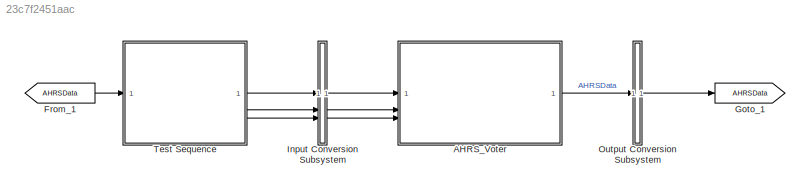
MODEL slx_23c7f2451aac
KIND model
CONFIG AbsTol = auto
CONFIG EnableMultiTasking = on
CONFIG FixedStep = auto
CONFIG MaxStep = auto
CONFIG MinStep = auto
CONFIG RelTol = 1e-3
CONFIG SampleTimeConstraint = Unconstrained
CONFIG SolverName = FixedStepDiscrete
CONFIG StartTime = 0.0
CONFIG StopTime = 10.0
BLOCK [ModelReference] AHRS_Voter
  ModelNameDialog = AHRS_Voter
  ModelReferenceVersion = 8.0
BLOCK [From] From_1
  GotoTag = AHRSData
BLOCK [Goto] Goto_1
  GotoTag = AHRSData
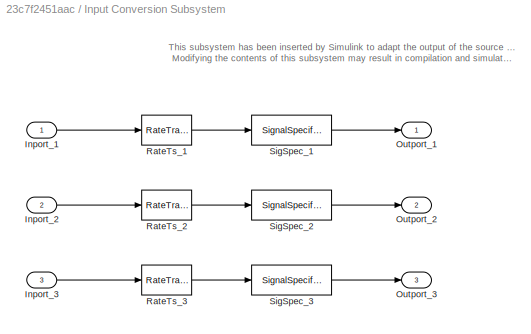
BLOCK [SubSystem] Input Conversion Subsystem
  AttributesFormatString = %<Description>
  Description = Signal spec.\nand routing
  Permissions = ReadOnly
  PermitHierarchicalResolution = ExplicitOnly
  Tag = __SLT_ICS__
  UserDataPersistent = on
BLOCK [Inport] Input Conversion Subsystem/Inport_1
BLOCK [Inport] Input Conversion Subsystem/Inport_2
  Port = 2
BLOCK [Inport] Input Conversion Subsystem/Inport_3
  Port = 3
BLOCK [Outport] Input Conversion Subsystem/Outport_1
  VectorParamsAs1DForOutWhenUnconnected = off
BLOCK [Outport] Input Conversion Subsystem/Outport_2
  Port = 2
  VectorParamsAs1DForOutWhenUnconnected = off
BLOCK [Outport] Input Conversion Subsystem/Outport_3
  Port = 3
  VectorParamsAs1DForOutWhenUnconnected = off
BLOCK [RateTransition] Input Conversion Subsystem/RateTs_1
  OutPortSampleTime = 0.01
BLOCK [RateTransition] Input Conversion Subsystem/RateTs_2
  OutPortSampleTime = 0.01
BLOCK [RateTransition] Input Conversion Subsystem/RateTs_3
  OutPortSampleTime = 0.01
BLOCK [SignalSpecification] Input Conversion Subsystem/SigSpec_1
  BusOutputAsStruct = on
  Dimensions = [1]
  OutDataTypeStr = Bus: AHRS_Bus
  SampleTime = 0.01
  SignalType = real
  VarSizeSig = No
BLOCK [SignalSpecification] Input Conversion Subsystem/SigSpec_2
  BusOutputAsStruct = on
  Dimensions = [1]
  OutDataTypeStr = Bus: AHRS_Bus
  SampleTime = 0.01
  SignalType = real
  VarSizeSig = No
BLOCK [SignalSpecification] Input Conversion Subsystem/SigSpec_3
  BusOutputAsStruct = on
  Dimensions = [1]
  OutDataTypeStr = Bus: AHRS_Bus
  SampleTime = 0.01
  SignalType = real
  VarSizeSig = No
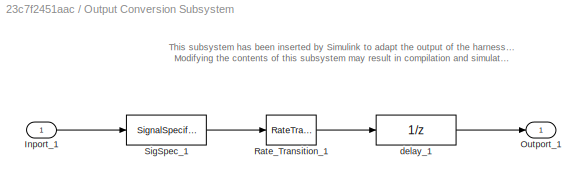
BLOCK [SubSystem] Output Conversion Subsystem
  AttributesFormatString = %<Description>
  Description = Signal spec.\nand routing
  Permissions = ReadOnly
  PermitHierarchicalResolution = ExplicitOnly
  Tag = __SLT_OCS__
  UserDataPersistent = on
BLOCK [Inport] Output Conversion Subsystem/Inport_1
BLOCK [Outport] Output Conversion Subsystem/Outport_1
  VectorParamsAs1DForOutWhenUnconnected = off
BLOCK [RateTransition] Output Conversion Subsystem/Rate_Transition_1
  OutPortSampleTimeOpt = Inherit
BLOCK [SignalSpecification] Output Conversion Subsystem/SigSpec_1
  Dimensions = [5]
  OutDataTypeStr = double
  SampleTime = 0.01
  SignalType = real
  VarSizeSig = No
BLOCK [UnitDelay] Output Conversion Subsystem/delay_1
  HasFrameUpgradeWarning = on
  SampleTime = -1
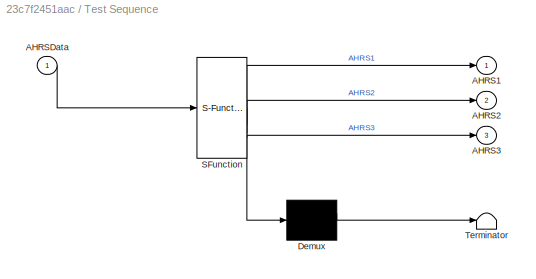
BLOCK [SubSystem] Test Sequence
  ErrorFcn = Stateflow.Translate.translate
  PermitHierarchicalResolution = ExplicitOnly
  SFBlockType = Test Sequence
  ShowPortLabels = none
  TreatAsAtomicUnit = on
BLOCK [Demux] Test Sequence/ Demux 
  Outputs = 1
BLOCK [S-Function] Test Sequence/ SFunction 
  EnableBusSupport = off
  FunctionName = sf_sfun
  PortCounts = [1 4]
  SFcnIsStateOwnerBlock = off
  SFunctionDeploymentMode = off
  Tag = Stateflow S-Function 4
BLOCK [Terminator] Test Sequence/ Terminator 
BLOCK [Outport] Test Sequence/AHRS1
  VectorParamsAs1DForOutWhenUnconnected = off
BLOCK [Outport] Test Sequence/AHRS2
  Port = 2
  VectorParamsAs1DForOutWhenUnconnected = off
BLOCK [Outport] Test Sequence/AHRS3
  Port = 3
  VectorParamsAs1DForOutWhenUnconnected = off
BLOCK [Inport] Test Sequence/AHRSData
ANNOTATION Input Conversion Subsystem: This subsystem has been inserted by Simulink to adapt the output of the source blocks to the interface required by the harnessed component. Modifying the contents of this subsystem may result in compilation and simulation failure.
ANNOTATION Output Conversion Subsystem: This subsystem has been inserted by Simulink to adapt the output of the harnessed component to the interface required by the sink blocks. Modifying the contents of this subsystem may result in compilation and simulation failure.
LINE AHRS_Voter:1 -> Output Conversion Subsystem:1
LINE From_1:1 -> Test Sequence:1
LINE Input Conversion Subsystem/Inport_1:1 -> Input Conversion Subsystem/RateTs_1:1
LINE Input Conversion Subsystem/Inport_2:1 -> Input Conversion Subsystem/RateTs_2:1
LINE Input Conversion Subsystem/Inport_3:1 -> Input Conversion Subsystem/RateTs_3:1
LINE Input Conversion Subsystem/RateTs_1:1 -> Input Conversion Subsystem/SigSpec_1:1
LINE Input Conversion Subsystem/RateTs_2:1 -> Input Conversion Subsystem/SigSpec_2:1
LINE Input Conversion Subsystem/RateTs_3:1 -> Input Conversion Subsystem/SigSpec_3:1
LINE Input Conversion Subsystem/SigSpec_1:1 -> Input Conversion Subsystem/Outport_1:1
LINE Input Conversion Subsystem/SigSpec_2:1 -> Input Conversion Subsystem/Outport_2:1
LINE Input Conversion Subsystem/SigSpec_3:1 -> Input Conversion Subsystem/Outport_3:1
LINE Input Conversion Subsystem:1 -> AHRS_Voter:1
LINE Input Conversion Subsystem:2 -> AHRS_Voter:2
LINE Input Conversion Subsystem:3 -> AHRS_Voter:3
LINE Output Conversion Subsystem/Inport_1:1 -> Output Conversion Subsystem/SigSpec_1:1
LINE Output Conversion Subsystem/Rate_Transition_1:1 -> Output Conversion Subsystem/delay_1:1
LINE Output Conversion Subsystem/SigSpec_1:1 -> Output Conversion Subsystem/Rate_Transition_1:1
LINE Output Conversion Subsystem/delay_1:1 -> Output Conversion Subsystem/Outport_1:1
LINE Output Conversion Subsystem:1 -> Goto_1:1
LINE Test Sequence:1 -> Input Conversion Subsystem:1
LINE Test Sequence:2 -> Input Conversion Subsystem:2
LINE Test Sequence:3 -> Input Conversion Subsystem:3
CHART Test Sequence states=8 transitions=8
  STATE_LABEL 'step_0\n\n%% Initialize data outputs.\nAHRS1.valid = true;\nAHRS1.theta = 0;\nAHRS1.phi = 0;\nAHRS1.r = 0;\nAHRS1.q = 0;\nAHRS1.p = 0;\nAHRS2.valid = true;\nAHRS2.theta = 0;\nAHRS2.phi = 0;\nAHRS2.r = 0;\nAHRS2.q = 0;\nAHRS2.p = 0;\nAHRS3.valid = true;\nAHRS3.theta = 0;\nAHRS3.phi = 0;\nAHRS3.r = 0;\nAHRS3.q = 0;\nAHRS3.p = 0;'
  STATE_LABEL "step_1\n% Test that all outputs are set to zero uisng the tolerance\nverify(abs(AHRSData(1))<Tol, 'HLR12 step_1: Zero output condition failed for theta');\nverify(abs(AHRSData(2))<Tol, 'HLR12 step_1: Zero output condition failed for phi');\nverify(abs(AHRSData(3))<Tol, 'HLR12 step_1: Zero output condition failed for r');\nverify(abs(AHRSData(4))<Tol, 'HLR12 step_1: Zero output condition failed for q');...<+82ch>"
  STATE_LABEL 'step_2\n% Set data to different values for each AHRS and each element\n% AHRS1\nAHRS1.valid = true;\nAHRS1.theta = -2;\nAHRS1.phi = 4;\nAHRS1.r = -6;\nAHRS1.q = 8;\nAHRS1.p = -10;\n% AHRS2\nAHRS2.valid = true;\nAHRS2.theta = -10;\nAHRS2.phi = 8;\nAHRS2.r = 5;\nAHRS2.q = -3;\nAHRS2.p = 0;\n% AHRS3\nAHRS3.valid = false;\nAHRS3.theta = 1;\nAHRS3.phi = 2;\nAHRS3.r = 3;\nAHRS3.q = -1;\nAHRS3.p = -2;'
  STATE_LABEL "step_3\n% Test that the output is the average of AHRS1 and AHRS2 for each parameter\nverify(abs(AHRSData(1)-(AHRS1.theta+AHRS2.theta)/2)<Tol, 'HLR_12 step_3: AHRS1 and AHRS2 voting for theta failed');\nverify(abs(AHRSData(2)-(AHRS1.phi+AHRS2.phi)/2)<Tol, 'HLR_12 step_3: AHRS1 and AHRS2 voting for phi failed');\nverify(abs(AHRSData(3)-(AHRS1.r+AHRS2.r)/2)<Tol, 'HLR_12 step_3: AHRS1 and AHRS2 voting for...<+222ch>"
  STATE_LABEL 'step_4\n% Set AHRS2 to invalid and AHRS 3 to valid\nAHRS2.valid = false;\nAHRS3.valid = true;'
  STATE_LABEL "step_5\n% Test that the output is the average of AHRS1 and AHRS3 for each parameter\nverify(abs(AHRSData(1)-(AHRS1.theta+AHRS3.theta)/2)<Tol, 'HLR_12 step_5: AHRS1 and AHRS3 voting for theta failed');\nverify(abs(AHRSData(2)-(AHRS1.phi+AHRS3.phi)/2)<Tol, 'HLR_12 step_5: AHRS1 and AHRS3 voting for phi failed');\nverify(abs(AHRSData(3)-(AHRS1.r+AHRS3.r)/2)<Tol, 'HLR_12 step_5: AHRS1 and AHRS3 voting for...<+222ch>"
  STATE_LABEL 'step_6\n% Set AHRS1 to invalid and AHRS2 to valid\nAHRS1.valid = false;\nAHRS2.valid = true;'
  STATE_LABEL "step_7\n% Test that the output is the average of AHRS3 and AHRS2 for each parameter\nverify(abs(AHRSData(1)-(AHRS3.theta+AHRS2.theta)/2)<Tol, 'HLR_12 step_7: AHRS3 and AHRS2 voting for theta failed');\nverify(abs(AHRSData(2)-(AHRS3.phi+AHRS2.phi)/2)<Tol, 'HLR_12 step_7: AHRS3 and AHRS2 voting for phi failed');\nverify(abs(AHRSData(3)-(AHRS3.r+AHRS2.r)/2)<Tol, 'HLR_12 step_7: AHRS3 and AHRS2 voting for...<+222ch>"
